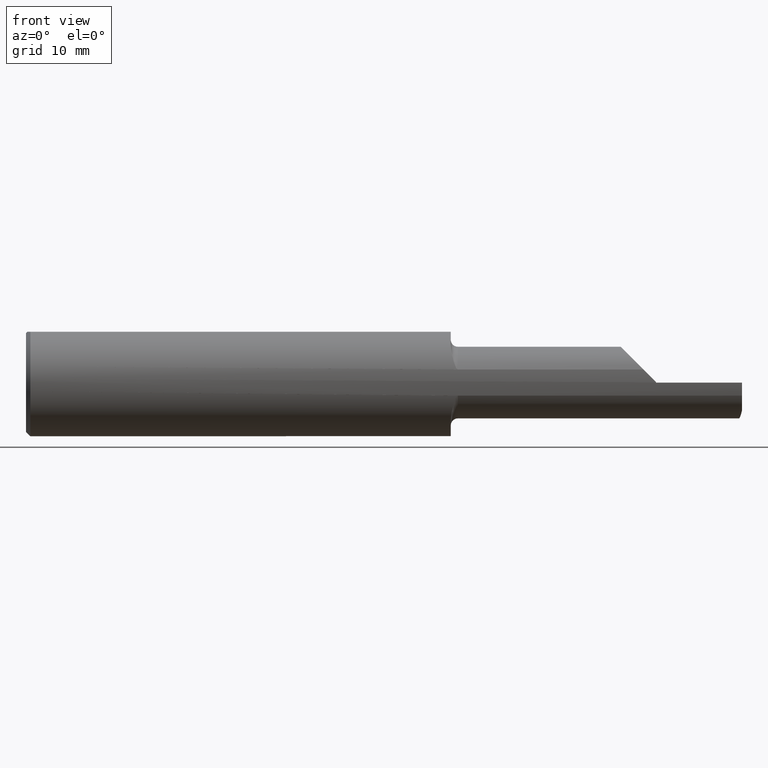
[diagram: clean part render]
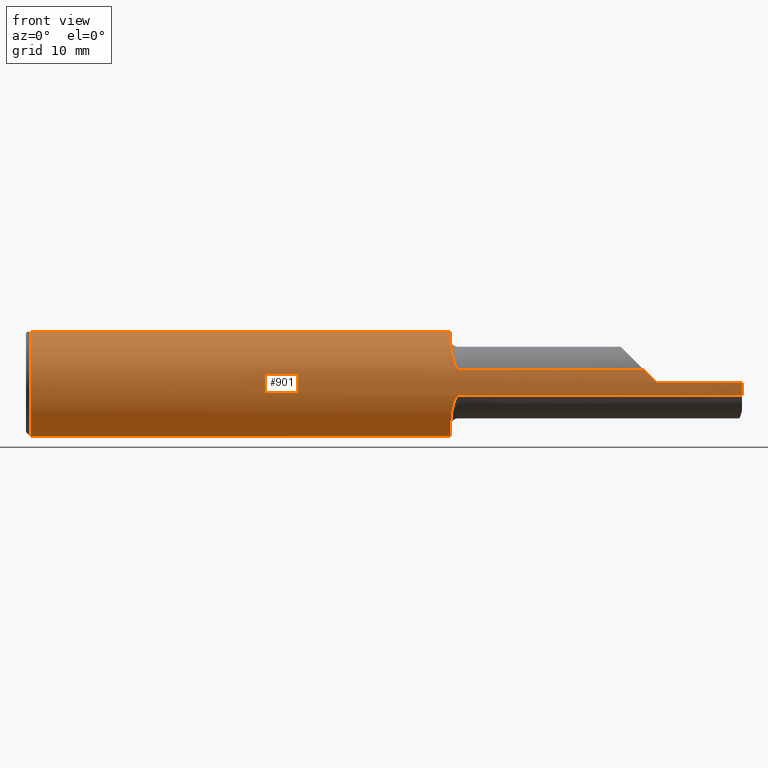
[diagram: same view with one face highlighted and labeled with its STEP entity id]
A machine part, front view. The second image highlights one B-rep face of the part: STEP entity #901.
In plain terms, the highlighted cylindrical surface (partial cylindrical patch) has radius 4.7587 mm, axis along (-1, -0, -0).
Its self-contained STEP definition (entity closure, byte-faithful):
#4 = DIRECTION ( 'NONE',  ( 0.000000000000000000, 0.000000000000000000, 1.000000000000000000 ) ) ;
#29 = DIRECTION ( 'NONE',  ( 0.000000000000000000, 0.000000000000000000, -1.000000000000000000 ) ) ;
#39 = EDGE_CURVE ( 'NONE', #732, #845, #315, .T. ) ;
#42 = VECTOR ( 'NONE', #996, 39.37007874015748143 ) ;
#44 = VERTEX_POINT ( 'NONE', #804 ) ;
#45 = VECTOR ( 'NONE', #502, 39.37007874015748143 ) ;
#49 = CARTESIAN_POINT ( 'NONE',  ( 2.200000000000000178, -0.1873451360457484560, 0.001349999999999087824 ) ) ;
#50 = ORIENTED_EDGE ( 'NONE', *, *, #725, .T. ) ;
#51 = LINE ( 'NONE', #831, #45 ) ;
#61 = AXIS2_PLACEMENT_3D ( 'NONE', #701, #84, #29 ) ;
#64 = CARTESIAN_POINT ( 'NONE',  ( 1.856500000000000039, -0.1816805279265493456, 0.04574066322573715898 ) ) ;
#70 = CARTESIAN_POINT ( 'NONE',  ( 1.490157939458078840, -0.1674139084628468166, -0.08459198811596603529 ) ) ;
#74 = DIRECTION ( 'NONE',  ( 1.000000000000000000, 0.000000000000000000, 0.000000000000000000 ) ) ;
#75 = CARTESIAN_POINT ( 'NONE',  ( 1.486681773380124749, -0.1584047100801144747, -0.1004548108586794247 ) ) ;
#81 = DIRECTION ( 'NONE',  ( 1.000000000000000000, -0.000000000000000000, -0.000000000000000000 ) ) ;
#84 = DIRECTION ( 'NONE',  ( 1.000000000000000000, 0.000000000000000000, 0.000000000000000000 ) ) ;
#93 = DIRECTION ( 'NONE',  ( 0.000000000000000000, 0.000000000000000000, -1.000000000000000000 ) ) ;
#114 = DIRECTION ( 'NONE',  ( 0.000000000000000000, 0.000000000000000000, -1.000000000000000000 ) ) ;
#116 = EDGE_CURVE ( 'NONE', #845, #884, #597, .T. ) ;
#118 = CARTESIAN_POINT ( 'NONE',  ( 2.500000000000000000, 0.06039039658753697637, 0.1773499999999999799 ) ) ;
#129 = CARTESIAN_POINT ( 'NONE',  ( 1.497714394919972714, -0.1775724809961186645, 0.05988543762226162387 ) ) ;
#137 = CARTESIAN_POINT ( 'NONE',  ( 1.507999999999999785, -0.1816805279265493456, -0.04574066322573715898 ) ) ;
#140 = CARTESIAN_POINT ( 'NONE',  ( 1.504038611304518547, -0.1811041330649479919, 0.04797886786269590226 ) ) ;
#145 = CARTESIAN_POINT ( 'NONE',  ( 2.155609336774261919, -0.1816805279265493178, 0.04574066322573720061 ) ) ;
#150 = DIRECTION ( 'NONE',  ( -1.000000000000000000, -0.000000000000000000, -0.000000000000000000 ) ) ;
#151 = CARTESIAN_POINT ( 'NONE',  ( 1.506817590302755860, -0.1816805279265502338, -0.04574066322574427135 ) ) ;
#155 = CARTESIAN_POINT ( 'NONE',  ( 2.200000000000000178, -0.1873499999999999888, -3.979970649922726459E-17 ) ) ;
#172 = CARTESIAN_POINT ( 'NONE',  ( 0.01499999999999970281, 0.000000000000000000, -0.1873499999999999888 ) ) ;
#173 = CIRCLE ( 'NONE', #744, 0.1873499999999999888 ) ;
#182 = ORIENTED_EDGE ( 'NONE', *, *, #376, .T. ) ;
#203 = CARTESIAN_POINT ( 'NONE',  ( 2.170144162329409543, -0.1853398774911412805, 0.03120583767058958749 ) ) ;
#239 = EDGE_CURVE ( 'NONE', #381, #393, #300, .T. ) ;
#241 = CARTESIAN_POINT ( 'NONE',  ( 2.200000000000000178, 0.000000000000000000, 0.000000000000000000 ) ) ;
#246 = CARTESIAN_POINT ( 'NONE',  ( 2.500000000000000000, 0.000000000000000000, 0.000000000000000000 ) ) ;
#253 = VERTEX_POINT ( 'NONE', #155 ) ;
#255 = CARTESIAN_POINT ( 'NONE',  ( 0.01499999999999970281, 0.06039039658753697637, 0.1773499999999999799 ) ) ;
#260 = EDGE_LOOP ( 'NONE', ( #559, #591, #491, #182, #406, #524, #305, #979, #319, #390, #50, #274, #635, #868 ) ) ;
#263 = VECTOR ( 'NONE', #598, 39.37007874015748143 ) ;
#274 = ORIENTED_EDGE ( 'NONE', *, *, #888, .T. ) ;
#275 = EDGE_CURVE ( 'NONE', #719, #779, #917, .T. ) ;
#278 = CARTESIAN_POINT ( 'NONE',  ( 1.483000000000000096, -0.1358364408402822632, -0.1293653927267005843 ) ) ;
#284 = LINE ( 'NONE', #64, #263 ) ;
#288 = CARTESIAN_POINT ( 'NONE',  ( 1.486710439827054309, -0.1584902558649208815, 0.1003133187725621656 ) ) ;
#300 = CIRCLE ( 'NONE', #479, 0.1873499999999999888 ) ;
#304 = CARTESIAN_POINT ( 'NONE',  ( 1.500471878265903003, -0.1794901087543955276, -0.05373940346778397631 ) ) ;
#305 = ORIENTED_EDGE ( 'NONE', *, *, #424, .T. ) ;
#315 = CIRCLE ( 'NONE', #525, 0.1873499999999999888 ) ;
#317 = CARTESIAN_POINT ( 'NONE',  ( 1.483000000000000096, 0.000000000000000000, 0.000000000000000000 ) ) ;
#318 = CARTESIAN_POINT ( 'NONE',  ( 1.501477950225052815, -0.1800855208038183997, -0.05170170159513978042 ) ) ;
#319 = ORIENTED_EDGE ( 'NONE', *, *, #801, .T. ) ;
#339 = CARTESIAN_POINT ( 'NONE',  ( 1.483000000000000096, -0.06039039658755174234, 0.1773499999999999799 ) ) ;
#349 = CIRCLE ( 'NONE', #61, 0.1873499999999999888 ) ;
#355 = CARTESIAN_POINT ( 'NONE',  ( 1.503346106735897081, -0.1808597239496786413, 0.04889540865154938520 ) ) ;
#360 = CARTESIAN_POINT ( 'NONE',  ( 2.185011993843769318, -0.1872371331974334863, 0.01633800615622971880 ) ) ;
#376 = EDGE_CURVE ( 'NONE', #253, #441, #546, .T. ) ;
#381 = VERTEX_POINT ( 'NONE', #618 ) ;
#389 = DIRECTION ( 'NONE',  ( -1.000000000000000000, -0.000000000000000000, -0.000000000000000000 ) ) ;
#390 = ORIENTED_EDGE ( 'NONE', *, *, #239, .T. ) ;
#393 = VERTEX_POINT ( 'NONE', #172 ) ;
#398 = CARTESIAN_POINT ( 'NONE',  ( 1.483000000000000096, -0.1290791507268554683, -0.1357887894770172799 ) ) ;
#406 = ORIENTED_EDGE ( 'NONE', *, *, #417, .T. ) ;
#417 = EDGE_CURVE ( 'NONE', #441, #891, #431, .T. ) ;
#420 = DIRECTION ( 'NONE',  ( 1.000000000000000000, 0.000000000000000000, 0.000000000000000000 ) ) ;
#424 = EDGE_CURVE ( 'NONE', #573, #44, #628, .T. ) ;
#428 = AXIS2_PLACEMENT_3D ( 'NONE', #897, #1001, #617 ) ;
#431 =( BOUNDED_CURVE ( )  B_SPLINE_CURVE ( 3, ( #49, #360, #203, #145 ),
 .UNSPECIFIED., .F., .T. ) 
 B_SPLINE_CURVE_WITH_KNOTS ( ( 4, 4 ),
 ( 4.719594807355369959, 4.959027430676235859 ),
 .UNSPECIFIED. ) 
 CURVE ( )  GEOMETRIC_REPRESENTATION_ITEM ( )  RATIONAL_B_SPLINE_CURVE ( ( 1.000000000000000000, 0.9952283712403753313, 0.9952283712403753313, 1.000000000000000000 ) ) 
 REPRESENTATION_ITEM ( '' )  );
#436 = CARTESIAN_POINT ( 'NONE',  ( 1.483000000000000096, -0.1290791507268554683, 0.1357887894770172799 ) ) ;
#441 = VERTEX_POINT ( 'NONE', #590 ) ;
#451 = EDGE_CURVE ( 'NONE', #573, #891, #284, .T. ) ;
#458 = CARTESIAN_POINT ( 'NONE',  ( 1.496243155597561714, -0.1761103983034254805, -0.06406878988066015690 ) ) ;
#466 = CARTESIAN_POINT ( 'NONE',  ( 0.01499999999999970281, 0.000000000000000000, 0.000000000000000000 ) ) ;
#469 = CARTESIAN_POINT ( 'NONE',  ( 2.500000000000000000, -0.1873499999999999610, -3.979970649922724610E-17 ) ) ;
#479 = AXIS2_PLACEMENT_3D ( 'NONE', #466, #81, #772 ) ;
#491 = ORIENTED_EDGE ( 'NONE', *, *, #583, .T. ) ;
#502 = DIRECTION ( 'NONE',  ( -1.000000000000000000, -0.000000000000000000, -0.000000000000000000 ) ) ;
#505 = EDGE_CURVE ( 'NONE', #719, #884, #587, .T. ) ;
#509 = CARTESIAN_POINT ( 'NONE',  ( 1.483508120371015648, -0.1420153276512570450, -0.1225377094583885579 ) ) ;
#516 = CARTESIAN_POINT ( 'NONE',  ( 1.483000000000000318, -0.1358297317783275782, 0.1293717702783574452 ) ) ;
#524 = ORIENTED_EDGE ( 'NONE', *, *, #451, .F. ) ;
#525 = AXIS2_PLACEMENT_3D ( 'NONE', #246, #970, #114 ) ;
#546 = CIRCLE ( 'NONE', #775, 0.1873499999999999888 ) ;
#551 = CARTESIAN_POINT ( 'NONE',  ( 1.497714244929360561, -0.1775741566219414536, -0.05988189962716784082 ) ) ;
#559 = ORIENTED_EDGE ( 'NONE', *, *, #116, .F. ) ;
#573 = VERTEX_POINT ( 'NONE', #625 ) ;
#583 = EDGE_CURVE ( 'NONE', #732, #253, #930, .T. ) ;
#585 = CARTESIAN_POINT ( 'NONE',  ( 1.483000000000000096, -0.1290791507268554683, -0.1357887894770172799 ) ) ;
#587 = B_SPLINE_CURVE_WITH_KNOTS ( 'NONE', 3,
 ( #585, #278, #509, #773, #75, #70, #940, #458, #551, #304, #318, #708, #783, #703, #151, #710 ),
 .UNSPECIFIED., .F., .F.,
 ( 4, 2, 2, 2, 2, 2, 2, 4 ),
 ( 0.000000000000000000, 0.0007010516798009805428, 0.001402103359601961086, 0.002103155039402941628, 0.002453680879303431466, 0.002628943799253676602, 0.002716575259228793532, 0.002804206719203910462 ),
 .UNSPECIFIED. ) ;
#588 = CYLINDRICAL_SURFACE ( 'NONE', #428, 0.1873499999999999888 ) ;
#589 = CARTESIAN_POINT ( 'NONE',  ( 1.856500000000000039, -0.1816805279265493456, -0.04574066322573715898 ) ) ;
#590 = CARTESIAN_POINT ( 'NONE',  ( 2.200000000000000178, -0.1873451360457484560, 0.001349999999999087824 ) ) ;
#591 = ORIENTED_EDGE ( 'NONE', *, *, #39, .F. ) ;
#597 = LINE ( 'NONE', #589, #42 ) ;
#598 = DIRECTION ( 'NONE',  ( 1.000000000000000000, 0.000000000000000000, 0.000000000000000000 ) ) ;
#617 = DIRECTION ( 'NONE',  ( 0.000000000000000000, 0.000000000000000000, 1.000000000000000000 ) ) ;
#618 = CARTESIAN_POINT ( 'NONE',  ( 0.01499999999999283677, -0.06039039658755173540, 0.1773499999999999799 ) ) ;
#625 = CARTESIAN_POINT ( 'NONE',  ( 1.507999999999999785, -0.1816805279265493456, 0.04574066322573715898 ) ) ;
#628 = B_SPLINE_CURVE_WITH_KNOTS ( 'NONE', 3,
 ( #837, #997, #911, #140, #355, #764, #822, #129, #677, #908, #983, #288, #833, #894, #516, #436 ),
 .UNSPECIFIED., .F., .F.,
 ( 4, 2, 2, 2, 2, 2, 2, 4 ),
 ( 0.000000000000000000, 8.953925068334392672E-05, 0.0001790785013666878534, 0.0003581570027333643770, 0.0007163140054667181287, 0.001432628010933426283, 0.002148942016400134328, 0.002865256021866842591 ),
 .UNSPECIFIED. ) ;
#635 = ORIENTED_EDGE ( 'NONE', *, *, #275, .F. ) ;
#659 = VERTEX_POINT ( 'NONE', #255 ) ;
#677 = CARTESIAN_POINT ( 'NONE',  ( 1.496238439611428550, -0.1761054551189537298, 0.06408236932159673549 ) ) ;
#686 = LINE ( 'NONE', #118, #885 ) ;
#701 = CARTESIAN_POINT ( 'NONE',  ( 1.483000000000000096, 0.000000000000000000, 0.000000000000000000 ) ) ;
#703 = CARTESIAN_POINT ( 'NONE',  ( 1.505757828336038884, -0.1815159194173287249, -0.04639655467506092340 ) ) ;
#708 = CARTESIAN_POINT ( 'NONE',  ( 1.503366350430950238, -0.1808668743673180757, -0.04886876118085511228 ) ) ;
#710 = CARTESIAN_POINT ( 'NONE',  ( 1.507999999999999785, -0.1816805279265493456, -0.04574066322573715898 ) ) ;
#718 = CARTESIAN_POINT ( 'NONE',  ( 0.01499999999999970281, 0.000000000000000000, 0.000000000000000000 ) ) ;
#719 = VERTEX_POINT ( 'NONE', #398 ) ;
#725 = EDGE_CURVE ( 'NONE', #393, #659, #173, .T. ) ;
#732 = VERTEX_POINT ( 'NONE', #878 ) ;
#738 = CARTESIAN_POINT ( 'NONE',  ( 2.155609336774261919, -0.1816805279265493178, 0.04574066322573720061 ) ) ;
#744 = AXIS2_PLACEMENT_3D ( 'NONE', #718, #803, #871 ) ;
#746 = CARTESIAN_POINT ( 'NONE',  ( 1.483000000000000096, 0.06039039658753698331, 0.1773499999999999799 ) ) ;
#764 = CARTESIAN_POINT ( 'NONE',  ( 1.501447111503740217, -0.1800702390342965864, 0.05175562241491449278 ) ) ;
#765 = VERTEX_POINT ( 'NONE', #339 ) ;
#772 = DIRECTION ( 'NONE',  ( 0.000000000000000000, 0.000000000000000000, -1.000000000000000000 ) ) ;
#773 = CARTESIAN_POINT ( 'NONE',  ( 1.485343370590518797, -0.1532864254495102663, -0.1081069623110096772 ) ) ;
#775 = AXIS2_PLACEMENT_3D ( 'NONE', #241, #150, #4 ) ;
#779 = VERTEX_POINT ( 'NONE', #746 ) ;
#783 = CARTESIAN_POINT ( 'NONE',  ( 1.504060832777567969, -0.1811109074190622448, -0.04795319073302573010 ) ) ;
#792 = VECTOR ( 'NONE', #389, 39.37007874015748143 ) ;
#801 = EDGE_CURVE ( 'NONE', #765, #381, #51, .T. ) ;
#803 = DIRECTION ( 'NONE',  ( 1.000000000000000000, -0.000000000000000000, -0.000000000000000000 ) ) ;
#804 = CARTESIAN_POINT ( 'NONE',  ( 1.483000000000000096, -0.1290791507268554683, 0.1357887894770172799 ) ) ;
#814 = CARTESIAN_POINT ( 'NONE',  ( 2.500000000000000000, -0.1816805279265493733, -0.04574066322573724225 ) ) ;
#821 = FACE_OUTER_BOUND ( 'NONE', #260, .T. ) ;
#822 = CARTESIAN_POINT ( 'NONE',  ( 1.500456448377852192, -0.1794802708211542253, 0.05377185297669053593 ) ) ;
#824 = AXIS2_PLACEMENT_3D ( 'NONE', #317, #74, #93 ) ;
#831 = CARTESIAN_POINT ( 'NONE',  ( 2.500000000000000000, -0.06039039658753697637, 0.1773499999999999799 ) ) ;
#833 = CARTESIAN_POINT ( 'NONE',  ( 1.485356402887169747, -0.1533523090637236019, 0.1080176704948172667 ) ) ;
#837 = CARTESIAN_POINT ( 'NONE',  ( 1.507999999999999785, -0.1816805279265493456, 0.04574066322573715898 ) ) ;
#845 = VERTEX_POINT ( 'NONE', #814 ) ;
#868 = ORIENTED_EDGE ( 'NONE', *, *, #505, .T. ) ;
#871 = DIRECTION ( 'NONE',  ( 0.000000000000000000, 0.000000000000000000, -1.000000000000000000 ) ) ;
#878 = CARTESIAN_POINT ( 'NONE',  ( 2.500000000000000000, -0.1873500000000000165, -3.979970649922726459E-17 ) ) ;
#884 = VERTEX_POINT ( 'NONE', #137 ) ;
#885 = VECTOR ( 'NONE', #420, 39.37007874015748143 ) ;
#888 = EDGE_CURVE ( 'NONE', #659, #779, #686, .T. ) ;
#891 = VERTEX_POINT ( 'NONE', #738 ) ;
#894 = CARTESIAN_POINT ( 'NONE',  ( 1.483507463316945385, -0.1420253514571688247, 0.1225297815952122032 ) ) ;
#897 = CARTESIAN_POINT ( 'NONE',  ( 2.500000000000000000, 0.000000000000000000, 0.000000000000000000 ) ) ;
#901 = ADVANCED_FACE ( 'NONE', ( #821 ), #588, .T. ) ;
#908 = CARTESIAN_POINT ( 'NONE',  ( 1.492239251373390863, -0.1712625384217546232, 0.07647091574860626073 ) ) ;
#911 = CARTESIAN_POINT ( 'NONE',  ( 1.505736562170379100, -0.1815122776378730873, 0.04641090218153592212 ) ) ;
#917 = CIRCLE ( 'NONE', #824, 0.1873499999999999888 ) ;
#927 = EDGE_CURVE ( 'NONE', #765, #44, #349, .T. ) ;
#930 = LINE ( 'NONE', #469, #792 ) ;
#940 = CARTESIAN_POINT ( 'NONE',  ( 1.492242766001950383, -0.1712683263405276601, -0.07645797409013614654 ) ) ;
#970 = DIRECTION ( 'NONE',  ( 1.000000000000000000, 0.000000000000000000, 0.000000000000000000 ) ) ;
#979 = ORIENTED_EDGE ( 'NONE', *, *, #927, .F. ) ;
#983 = CARTESIAN_POINT ( 'NONE',  ( 1.490165066739708388, -0.1674210122097408715, 0.08457025362359725518 ) ) ;
#996 = DIRECTION ( 'NONE',  ( -1.000000000000000000, -0.000000000000000000, -0.000000000000000000 ) ) ;
#997 = CARTESIAN_POINT ( 'NONE',  ( 1.506803717416865807, -0.1816805279265494011, 0.04574066322573717286 ) ) ;
#1001 = DIRECTION ( 'NONE',  ( -1.000000000000000000, -0.000000000000000000, -0.000000000000000000 ) ) ;